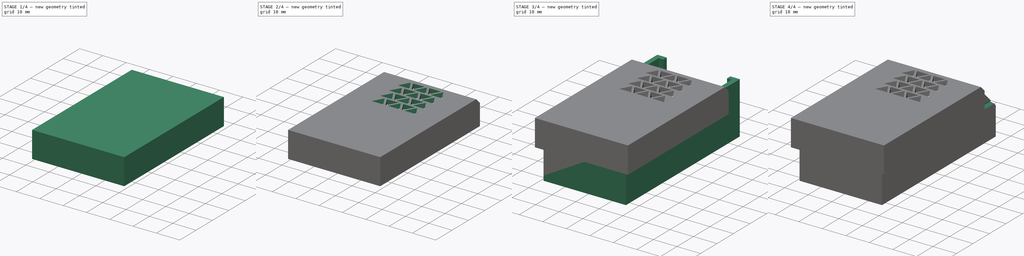
[diagram: build sequence overview — one tinted view per stage of 4, left to right]
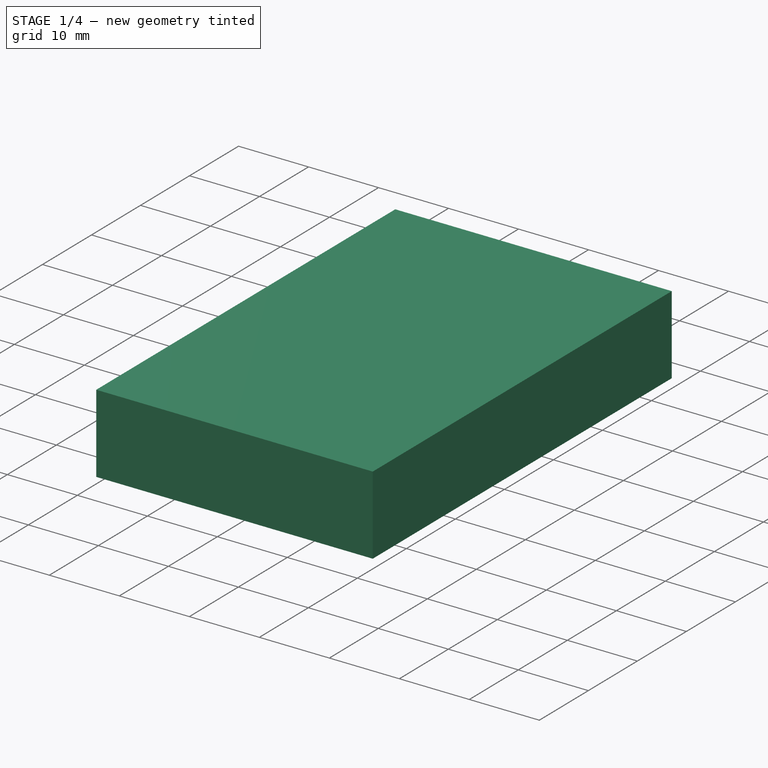
[diagram: stage 1 of 4 — iso view after this stage's code; geometry added in this stage tinted green]
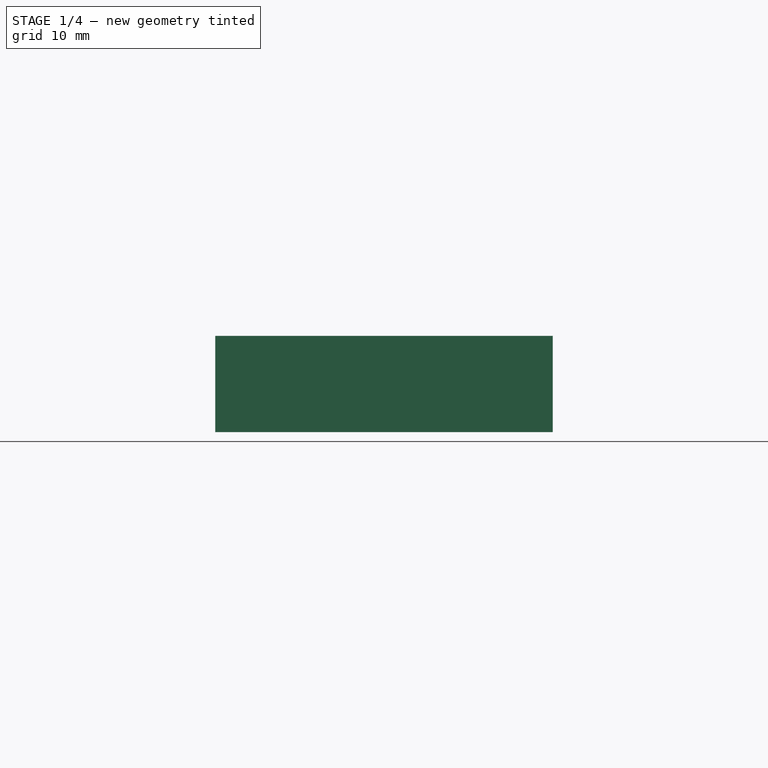
[diagram: stage 1 of 4 — front view after this stage's code; geometry added in this stage tinted green]
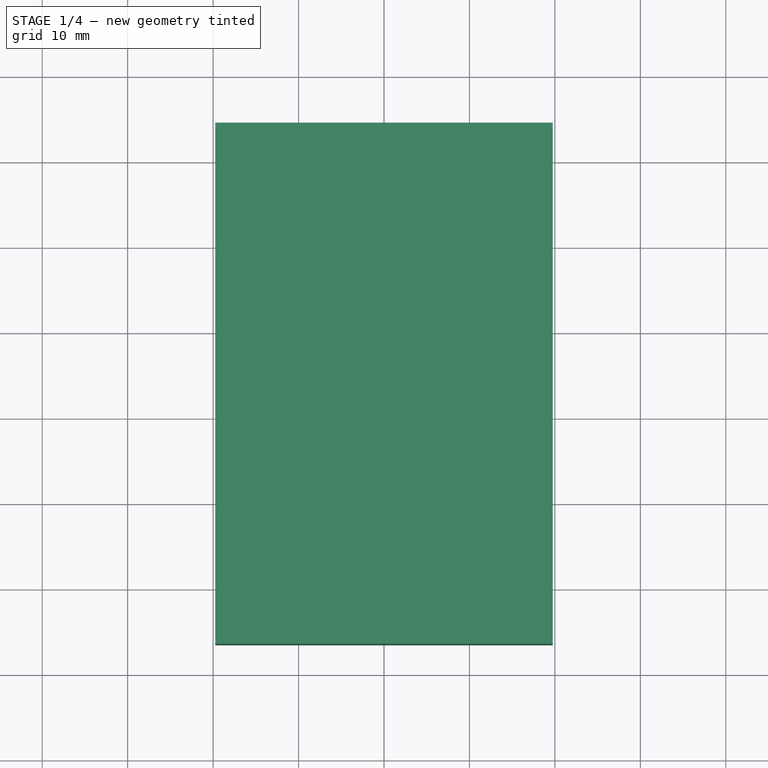
[diagram: stage 1 of 4 — top view after this stage's code; geometry added in this stage tinted green]
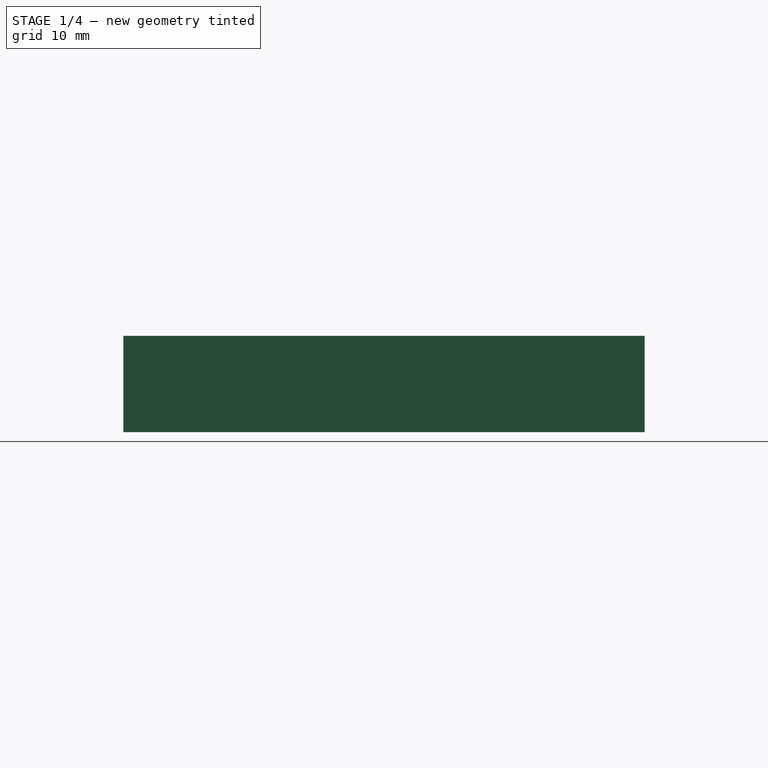
[diagram: stage 1 of 4 — right view after this stage's code; geometry added in this stage tinted green]
FCSTD DOCUMENT  (FreeCAD 0.17R13541 (Git))
Label: ControllerBox
License: All rights reserved
LicenseURL: http://en.wikipedia.org/wiki/All_rights_reserved
objects: Sketcher::SketchObject×9, PartDesign::Pad×5, PartDesign::Pocket×4, PartDesign::Body×2, Spreadsheet::Sheet×1, App::Part×1
note: 29 computed .brp shape members not serialized (recipe doc carries the construction recipe); baked Part::Feature solids carry a one-line shape summary decoded from their .brp

FEATURE [PartDesign::Body] Body
  Group = -> [Sketch,Pad,Sketch001,Pad001,Sketch002,Pad002,Sketch003,Pocket,Sketch004,Pocket001]
  Origin = -> Origin001
  Tip = -> Pocket001
FEATURE [Sketcher::SketchObject] Sketch005
  MapMode = 5
  Placement = pos=(0,0,0) rot=(1,0,0;1.5708rad)
  Support = -> [XZ_Plane002]
  expr: Constraints[45] = 8mm + D.offset
  expr: Constraints[46] = D.dWidth / 2 + D.wall + D.offset
  expr: Constraints[44] = D.wall / 2
  expr: Constraints[42] = D.floor + D.dHeight + D.offset
  expr: Constraints[41] = D.dWidth + D.wall * 2 + D.offset * 2
  expr: Constraints[43] = D.wall / 2
  expr: Constraints[36] = D.wall
  expr: Constraints[37] = D.wall
  expr: Constraints[35] = D.wall
  sketch-geometry (12):
    g0: LineSegment StartX=16.75 StartY=14 StartZ=0 EndX=17.75 EndY=13 EndZ=0
    g1: LineSegment StartX=16.75 StartY=14 StartZ=0 EndX=17.75 EndY=15 EndZ=0
    g2: LineSegment StartX=17.75 StartY=15 StartZ=0 EndX=17.75 EndY=22.25 EndZ=0
    g3: LineSegment StartX=17.75 StartY=22.25 StartZ=0 EndX=-17.75 EndY=22.25 EndZ=0
    g4: LineSegment StartX=-17.75 StartY=22.25 StartZ=0 EndX=-17.75 EndY=15 EndZ=0
    g5: LineSegment StartX=-17.75 StartY=15 StartZ=0 EndX=-16.75 EndY=14 EndZ=0
    g6: LineSegment StartX=-16.75 StartY=14 StartZ=0 EndX=-17.75 EndY=13 EndZ=0
    g7: LineSegment StartX=-17.75 StartY=13 StartZ=0 EndX=-19.75 EndY=13 EndZ=0
    g8: LineSegment StartX=-19.75 StartY=13 StartZ=0 EndX=-19.75 EndY=24.25 EndZ=0
    g9: LineSegment StartX=-19.75 StartY=24.25 StartZ=0 EndX=19.75 EndY=24.25 EndZ=0
    g10: LineSegment StartX=17.75 StartY=13 StartZ=0 EndX=19.75 EndY=13 EndZ=0
    g11: LineSegment StartX=19.75 StartY=13 StartZ=0 EndX=19.75 EndY=24.25 EndZ=0
  constraints (47):
    c: PointOnObject(g1,g0)
    c: PointOnObject(g2,g1)
    c: Vertical(g2)
    c: PointOnObject(g3,g2)
    c: Horizontal(g3)
    c: PointOnObject(g4,g3)
    c: Vertical(g4)
    c: PointOnObject(g5,g4)
    c: PointOnObject(g6,g5)
    c: PointOnObject(g7,g6)
    c: Horizontal(g7)
    c: PointOnObject(g8,g7)
    c: Vertical(g8)
    c: PointOnObject(g9,g8)
    c: Horizontal(g9)
    c: PointOnObject(g10,g0)
    c: PointOnObject(g11,g10)
    c: Vertical(g11)
    c: Coincident(g11,g9)
    c: Coincident(g10,g11)
    c: Coincident(g0,g10)
    c: Coincident(g7,g6)
    c: Coincident(g7,g8)
    c: Coincident(g4,g5)
    c: Coincident(g5,g6)
    c: Coincident(g3,g4)
    c: Coincident(g8,g9)
    c: Coincident(g2,g3)
    c: Coincident(g0,g1)
    c: Coincident(g1,g2)
    c: Horizontal(g10)
    c: Angle(g0,g1) = 1.5708
    c: Angle(g5,g6) = 1.5708
    c: Angle(g10,g0) = 2.35619
    c: Angle(g6,g7) = 2.35619
    c: DistanceX(g8,g3) = 2
    c: DistanceX(g2,g9) = 2
    c: DistanceY(g2,g9) = 2
    c: Vertical(g0,g1)
    c: Vertical(g4,g6)
    c: Horizontal(g5,g0)
    c: Distance(g3) = 35.5
    c: DistanceY(g-1,g3) = 22.25
    c: DistanceX(g4,g5) = 1
    c: DistanceX(g0,g1) = 1
    c: DistanceY(g0,g2) = 8.25
    c: DistanceX(g-1,g2) = 17.75
FEATURE [PartDesign::Pad] Pad003
  Length = 34.5
  Length2 = 24.5
  Placement = pos=(0,0,0) rot=(1,0,0;1.5708rad)
  Profile = -> Sketch005
  Type = 4
  expr: Length2 = D.dLength / 2 + D.wall - 10mm
  expr: Length = D.dLength / 2 + D.wall
FEATURE [Sketcher::SketchObject] Sketch006
  MapMode = 5
  Placement = pos=(0,-34.5,0) rot=(1,0,0;1.5708rad)
  Support = -> [Pad003]
  expr: Constraints[11] = 8mm + D.wall + 1mm + D.offset
  expr: Constraints[10] = D.dWidth / 2 + D.wall * 2 + D.offset
  expr: Constraints[9] = D.dWidth / 2 + D.wall * 2 + D.offset
  expr: Constraints[8] = D.floor + D.dHeight + D.wall + D.offset
  sketch-geometry (4):
    g0: LineSegment StartX=-19.75 StartY=24.25 StartZ=0 EndX=19.75 EndY=24.25 EndZ=0
    g1: LineSegment StartX=19.75 StartY=24.25 StartZ=0 EndX=19.75 EndY=13 EndZ=0
    g2: LineSegment StartX=19.75 StartY=13 StartZ=0 EndX=-19.75 EndY=13 EndZ=0
    g3: LineSegment StartX=-19.75 StartY=13 StartZ=0 EndX=-19.75 EndY=24.25 EndZ=0
  constraints (12):
    c: Coincident(g0,g1)
    c: Coincident(g1,g2)
    c: Coincident(g2,g3)
    c: Coincident(g3,g0)
    c: Horizontal(g0)
    c: Horizontal(g2)
    c: Vertical(g1)
    c: Vertical(g3)
    c: DistanceY(g-1,g0) = 24.25
    c: DistanceX(g0,g-1) = 19.75
    c: DistanceX(g-1,g1) = 19.75
    c: Distance(g1) = 11.25
FEATURE [PartDesign::Pad] Pad004
  BaseFeature = -> Pad003
  Length = 2
  Length2 = 100
  Placement = pos=(0,0,0) rot=(1,0,0;1.5708rad)
  Profile = -> Sketch006
  Type = 0
  expr: Length = D.wall
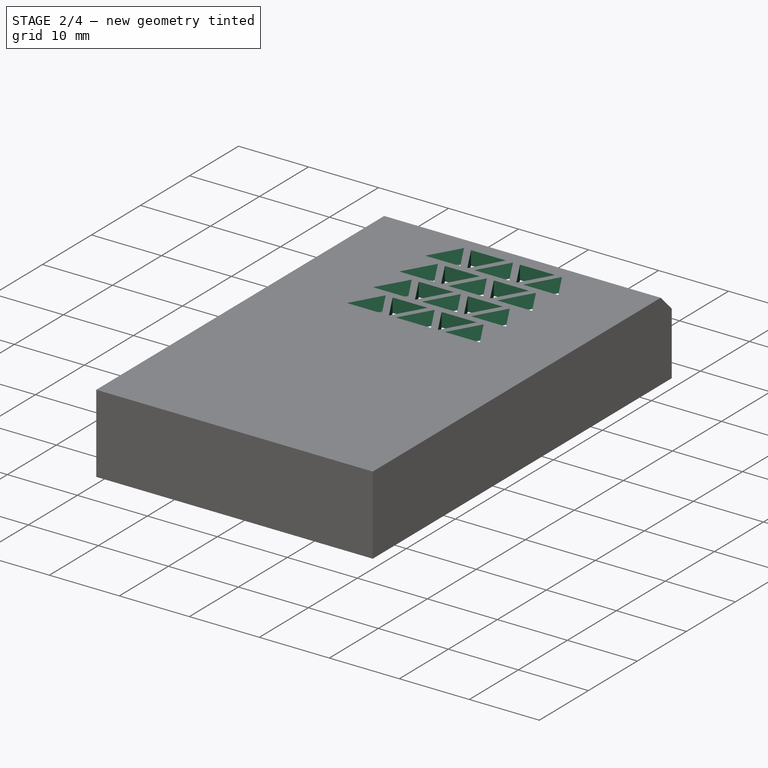
[diagram: stage 2 of 4 — iso view after this stage's code; geometry added in this stage tinted green]
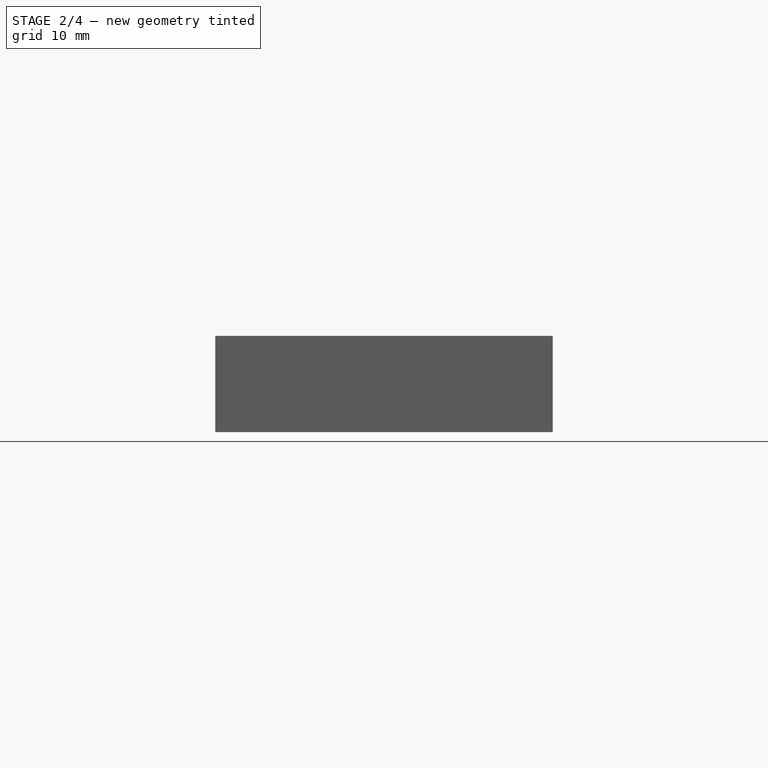
[diagram: stage 2 of 4 — front view after this stage's code; geometry added in this stage tinted green]
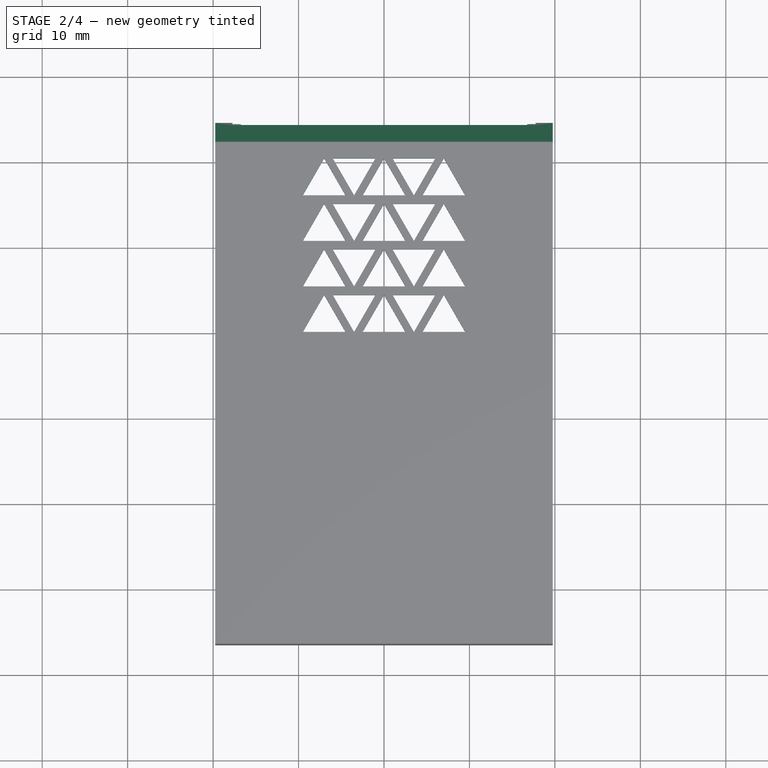
[diagram: stage 2 of 4 — top view after this stage's code; geometry added in this stage tinted green]
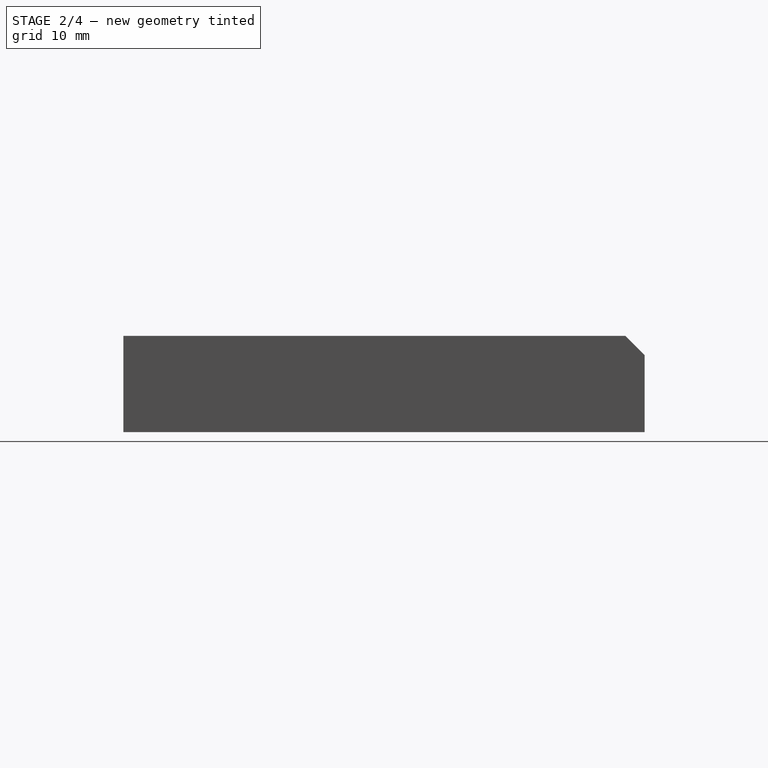
[diagram: stage 2 of 4 — right view after this stage's code; geometry added in this stage tinted green]
FEATURE [Sketcher::SketchObject] Sketch007
  MapMode = 5
  Placement = pos=(-19.75,0,0) rot=(0.707107,0,-0.707107;3.14159rad)
  Support = -> [Pad004]
  expr: Constraints[8] = 10mm + D.wall + D.offset
  expr: Constraints[7] = D.floor + D.dHeight + D.wall + D.offset
  expr: Constraints[6] = D.dLength / 2 + D.wall
  sketch-geometry (3):
    g0: LineSegment StartX=-12 StartY=-34.5 StartZ=0 EndX=-24.25 EndY=-22.25 EndZ=0
    g1: LineSegment StartX=-24.25 StartY=-22.25 StartZ=0 EndX=-24.25 EndY=-34.5 EndZ=0
    g2: LineSegment StartX=-12 StartY=-34.5 StartZ=0 EndX=-24.25 EndY=-34.5 EndZ=0
  constraints (9):
    c: Vertical(g1)
    c: Coincident(g2,g0)
    c: Horizontal(g2)
    c: Coincident(g1,g2)
    c: Angle(g0,g2) = 0.785398
    c: Coincident(g0,g1)
    c: DistanceY(g0,g-1) = 34.5
    c: DistanceX(g0,g-1) = 24.25
    c: Distance(g2) = 12.25
FEATURE [PartDesign::Pocket] Pocket002
  BaseFeature = -> Pad004
  Length = 5
  Length2 = 100
  Placement = pos=(0,0,0) rot=(1,0,0;1.5708rad)
  Profile = -> Sketch007
  Type = 1
FEATURE [Sketcher::SketchObject] Sketch008
  MapMode = 5
  Placement = pos=(0,0,22.25) rot=(1,0,0;3.14159rad)
  Support = -> [Pocket002]
  sketch-geometry (80):
    g0: LineSegment StartX=-9.5 StartY=0 StartZ=0 EndX=-7 EndY=-4.33013 EndZ=0
    g1: LineSegment StartX=-7 StartY=-4.33013 StartZ=0 EndX=-4.5 EndY=0 EndZ=0
    g2: LineSegment StartX=-4.5 StartY=0 StartZ=0 EndX=-9.5 EndY=0 EndZ=0
    g3: Circle [constr] CenterX=-7 CenterY=-1.44338 CenterZ=0 NormalX=0 NormalY=0 NormalZ=1 AngleXU=0 Radius=2.88675
    g4: LineSegment StartX=-2.5 StartY=0 StartZ=0 EndX=0 EndY=-4.33013 EndZ=0
    g5: LineSegment StartX=0 StartY=-4.33013 StartZ=0 EndX=2.5 EndY=0 EndZ=0
    g6: LineSegment StartX=2.5 StartY=0 StartZ=0 EndX=-2.5 EndY=0 EndZ=0
    g7: Circle [constr] CenterX=0 CenterY=-1.44338 CenterZ=0 NormalX=0 NormalY=0 NormalZ=1 AngleXU=0 Radius=2.88675
    g8: LineSegment StartX=9.5 StartY=0 StartZ=0 EndX=4.5 EndY=0 EndZ=0
    g9: LineSegment StartX=4.5 StartY=0 StartZ=0 EndX=7 EndY=-4.33013 EndZ=0
    g10: LineSegment StartX=7 StartY=-4.33013 StartZ=0 EndX=9.5 EndY=0 EndZ=0
    g11: Circle [constr] CenterX=7 CenterY=-1.44338 CenterZ=0 NormalX=0 NormalY=0 NormalZ=1 AngleXU=0 Radius=2.88675
    g12: LineSegment StartX=-3.5 StartY=0 StartZ=0 EndX=-6 EndY=-4.33013 EndZ=0
    g13: LineSegment StartX=-6 StartY=-4.33013 StartZ=0 EndX=-1 EndY=-4.33013 EndZ=0
    g14: LineSegment StartX=-1 StartY=-4.33013 StartZ=0 EndX=-3.5 EndY=0 EndZ=0
    g15: Circle [constr] CenterX=-3.5 CenterY=-2.88675 CenterZ=0 NormalX=0 NormalY=0 NormalZ=1 AngleXU=0 Radius=2.88675
    g16: LineSegment StartX=3.5 StartY=0 StartZ=0 EndX=1 EndY=-4.33013 EndZ=0
    g17: LineSegment StartX=1 StartY=-4.33013 StartZ=0 EndX=6 EndY=-4.33013 EndZ=0
    g18: LineSegment StartX=6 StartY=-4.33013 StartZ=0 EndX=3.5 EndY=0 EndZ=0
    g19: Circle [constr] CenterX=3.5 CenterY=-2.88675 CenterZ=0 NormalX=0 NormalY=0 NormalZ=1 AngleXU=0 Radius=2.88675
    g20: LineSegment StartX=-9.5 StartY=-5.33013 StartZ=0 EndX=-7 EndY=-9.66025 EndZ=0
    g21: LineSegment StartX=-7 StartY=-9.66025 StartZ=0 EndX=-4.5 EndY=-5.33013 EndZ=0
    g22: LineSegment StartX=-4.5 StartY=-5.33013 StartZ=0 EndX=-9.5 EndY=-5.33013 EndZ=0
    g23: Circle [constr] CenterX=-7 CenterY=-6.7735 CenterZ=0 NormalX=0 NormalY=0 NormalZ=1 AngleXU=0 Radius=2.88675
    g24: LineSegment StartX=-2.5 StartY=-5.33013 StartZ=0 EndX=0 EndY=-9.66025 EndZ=0
    g25: LineSegment StartX=0 StartY=-9.66025 StartZ=0 EndX=2.5 EndY=-5.33013 EndZ=0
    g26: LineSegment StartX=2.5 StartY=-5.33013 StartZ=0 EndX=-2.5 EndY=-5.33013 EndZ=0
    g27: Circle [constr] CenterX=0 CenterY=-6.7735 CenterZ=0 NormalX=0 NormalY=0 NormalZ=1 AngleXU=0 Radius=2.88675
    g28: LineSegment StartX=9.5 StartY=-5.33013 StartZ=0 EndX=4.5 EndY=-5.33013 EndZ=0
    g29: LineSegment StartX=4.5 StartY=-5.33013 StartZ=0 EndX=7 EndY=-9.66025 EndZ=0
    g30: LineSegment StartX=7 StartY=-9.66025 StartZ=0 EndX=9.5 EndY=-5.33013 EndZ=0
    g31: Circle [constr] CenterX=7 CenterY=-6.7735 CenterZ=0 NormalX=0 NormalY=0 NormalZ=1 AngleXU=0 Radius=2.88675
    g32: LineSegment StartX=-3.5 StartY=-5.33013 StartZ=0 EndX=-6 EndY=-9.66025 EndZ=0
    g33: LineSegment StartX=-6 StartY=-9.66025 StartZ=0 EndX=-1 EndY=-9.66025 EndZ=0
    g34: LineSegment StartX=-1 StartY=-9.66025 StartZ=0 EndX=-3.5 EndY=-5.33013 EndZ=0
    g35: Circle [constr] CenterX=-3.5 CenterY=-8.21688 CenterZ=0 NormalX=0 NormalY=0 NormalZ=1 AngleXU=0 Radius=2.88675
    g36: LineSegment StartX=3.5 StartY=-5.33013 StartZ=0 EndX=1 EndY=-9.66025 EndZ=0
    g37: LineSegment StartX=1 StartY=-9.66025 StartZ=0 EndX=6 EndY=-9.66025 EndZ=0
    g38: LineSegment StartX=6 StartY=-9.66025 StartZ=0 EndX=3.5 EndY=-5.33013 EndZ=0
    g39: Circle [constr] CenterX=3.5 CenterY=-8.21688 CenterZ=0 NormalX=0 NormalY=0 NormalZ=1 AngleXU=0 Radius=2.88675
    g40: LineSegment StartX=-9.5 StartY=-10.6603 StartZ=0 EndX=-7 EndY=-14.9904 EndZ=0
    g41: LineSegment StartX=-7 StartY=-14.9904 StartZ=0 EndX=-4.5 EndY=-10.6603 EndZ=0
    g42: LineSegment StartX=-4.5 StartY=-10.6603 StartZ=0 EndX=-9.5 EndY=-10.6603 EndZ=0
    g43: Circle [constr] CenterX=-7 CenterY=-12.1036 CenterZ=0 NormalX=0 NormalY=0 NormalZ=1 AngleXU=0 Radius=2.88675
    g44: LineSegment StartX=-2.5 StartY=-10.6603 StartZ=0 EndX=0 EndY=-14.9904 EndZ=0
    g45: LineSegment StartX=0 StartY=-14.9904 StartZ=0 EndX=2.5 EndY=-10.6603 EndZ=0
    g46: LineSegment StartX=2.5 StartY=-10.6603 StartZ=0 EndX=-2.5 EndY=-10.6603 EndZ=0
    g47: Circle [constr] CenterX=0 CenterY=-12.1036 CenterZ=0 NormalX=0 NormalY=0 NormalZ=1 AngleXU=0 Radius=2.88675
    g48: LineSegment StartX=9.5 StartY=-10.6603 StartZ=0 EndX=4.5 EndY=-10.6603 EndZ=0
    g49: LineSegment StartX=4.5 StartY=-10.6603 StartZ=0 EndX=7 EndY=-14.9904 EndZ=0
    g50: LineSegment StartX=7 StartY=-14.9904 StartZ=0 EndX=9.5 EndY=-10.6603 EndZ=0
    g51: Circle [constr] CenterX=7 CenterY=-12.1036 CenterZ=0 NormalX=0 NormalY=0 NormalZ=1 AngleXU=0 Radius=2.88675
    g52: LineSegment StartX=-3.5 StartY=-10.6603 StartZ=0 EndX=-6 EndY=-14.9904 EndZ=0
    g53: LineSegment StartX=-6 StartY=-14.9904 StartZ=0 EndX=-1 EndY=-14.9904 EndZ=0
    g54: LineSegment StartX=-1 StartY=-14.9904 StartZ=0 EndX=-3.5 EndY=-10.6603 EndZ=0
    g55: Circle [constr] CenterX=-3.5 CenterY=-13.547 CenterZ=0 NormalX=0 NormalY=0 NormalZ=1 AngleXU=0 Radius=2.88675
    g56: LineSegment StartX=3.5 StartY=-10.6603 StartZ=0 EndX=1 EndY=-14.9904 EndZ=0
    g57: LineSegment StartX=1 StartY=-14.9904 StartZ=0 EndX=6 EndY=-14.9904 EndZ=0
    g58: LineSegment StartX=6 StartY=-14.9904 StartZ=0 EndX=3.5 EndY=-10.6603 EndZ=0
    g59: Circle [constr] CenterX=3.5 CenterY=-13.547 CenterZ=0 NormalX=0 NormalY=0 NormalZ=1 AngleXU=0 Radius=2.88675
    g60: LineSegment StartX=-9.5 StartY=-15.9904 StartZ=0 EndX=-7 EndY=-20.3205 EndZ=0
    g61: LineSegment StartX=-7 StartY=-20.3205 StartZ=0 EndX=-4.5 EndY=-15.9904 EndZ=0
    g62: LineSegment StartX=-4.5 StartY=-15.9904 StartZ=0 EndX=-9.5 EndY=-15.9904 EndZ=0
    g63: Circle [constr] CenterX=-7 CenterY=-17.4338 CenterZ=0 NormalX=0 NormalY=0 NormalZ=1 AngleXU=0 Radius=2.88675
    g64: LineSegment StartX=-2.5 StartY=-15.9904 StartZ=0 EndX=0 EndY=-20.3205 EndZ=0
    g65: LineSegment StartX=0 StartY=-20.3205 StartZ=0 EndX=2.5 EndY=-15.9904 EndZ=0
    g66: LineSegment StartX=2.5 StartY=-15.9904 StartZ=0 EndX=-2.5 EndY=-15.9904 EndZ=0
    g67: Circle [constr] CenterX=0 CenterY=-17.4338 CenterZ=0 NormalX=0 NormalY=0 NormalZ=1 AngleXU=0 Radius=2.88675
    g68: LineSegment StartX=9.5 StartY=-15.9904 StartZ=0 EndX=4.5 EndY=-15.9904 EndZ=0
    g69: LineSegment StartX=4.5 StartY=-15.9904 StartZ=0 EndX=7 EndY=-20.3205 EndZ=0
    g70: LineSegment StartX=7 StartY=-20.3205 StartZ=0 EndX=9.5 EndY=-15.9904 EndZ=0
    g71: Circle [constr] CenterX=7 CenterY=-17.4338 CenterZ=0 NormalX=0 NormalY=0 NormalZ=1 AngleXU=0 Radius=2.88675
    g72: LineSegment StartX=-3.5 StartY=-15.9904 StartZ=0 EndX=-6 EndY=-20.3205 EndZ=0
    g73: LineSegment StartX=-6 StartY=-20.3205 StartZ=0 EndX=-1 EndY=-20.3205 EndZ=0
    g74: LineSegment StartX=-1 StartY=-20.3205 StartZ=0 EndX=-3.5 EndY=-15.9904 EndZ=0
    g75: Circle [constr] CenterX=-3.5 CenterY=-18.8771 CenterZ=0 NormalX=0 NormalY=0 NormalZ=1 AngleXU=0 Radius=2.88675
    g76: LineSegment StartX=3.5 StartY=-15.9904 StartZ=0 EndX=1 EndY=-20.3205 EndZ=0
    g77: LineSegment StartX=1 StartY=-20.3205 StartZ=0 EndX=6 EndY=-20.3205 EndZ=0
    g78: LineSegment StartX=6 StartY=-20.3205 StartZ=0 EndX=3.5 EndY=-15.9904 EndZ=0
    g79: Circle [constr] CenterX=3.5 CenterY=-18.8771 CenterZ=0 NormalX=0 NormalY=0 NormalZ=1 AngleXU=0 Radius=2.88675
  constraints (240):
    c: Coincident(g0,g1)
    c: Coincident(g1,g2)
    c: Coincident(g2,g0)
    c: Equal(g0,g1)
    c: Equal(g0,g2)
    c: PointOnObject(g0,g3)
    c: PointOnObject(g1,g3)
    c: PointOnObject(g2,g3)
    c: Horizontal(g2)
    c: Distance(g2) = 5
    c: Horizontal(g0,g-1)
    c: Coincident(g4,g5)
    c: Coincident(g5,g6)
    c: Coincident(g6,g4)
    c: Equal(g4,g5)
    c: Equal(g4,g6)
    c: PointOnObject(g4,g7)
    c: PointOnObject(g5,g7)
    c: PointOnObject(g6,g7)
    c: Horizontal(g6)
    c: Distance(g6) = 5
    c: Horizontal(g4,g-1)
    c: Vertical(g4,g-1)
    c: Distance(g1,g4) = 2
    c: Coincident(g8,g9)
    c: Coincident(g9,g10)
    c: Coincident(g10,g8)
    c: Equal(g8,g9)
    c: Equal(g8,g10)
    c: PointOnObject(g8,g11)
    c: PointOnObject(g9,g11)
    c: PointOnObject(g10,g11)
    c: Horizontal(g8)
    c: Horizontal(g8,g-1)
    c: Distance(g8) = 5
    c: Distance(g5,g8) = 2
    c: Coincident(g12,g13)
    c: Coincident(g13,g14)
    c: Coincident(g14,g12)
    c: Equal(g12,g13)
    c: Equal(g12,g14)
    c: PointOnObject(g12,g15)
    c: PointOnObject(g13,g15)
    c: PointOnObject(g14,g15)
    c: Horizontal(g13)
    c: Horizontal(g-1,g12)
    c: Distance(g13) = 5
    c: Distance(g12,g4) = 1
    c: Coincident(g16,g17)
    c: Coincident(g17,g18)
    c: Coincident(g18,g16)
    c: Equal(g16,g17)
    c: Equal(g16,g18)
    c: PointOnObject(g16,g19)
    c: PointOnObject(g17,g19)
    c: PointOnObject(g18,g19)
    c: Horizontal(g17)
    c: Horizontal(g16,g8)
    c: Distance(g16,g5) = 1
    c: Distance(g17) = 5
    c: Coincident(g20,g21)
    c: Coincident(g21,g22)
    c: Coincident(g22,g20)
    c: Equal(g20,g21)
    c: Equal(g20,g22)
    c: PointOnObject(g20,g23)
    c: PointOnObject(g21,g23)
    c: PointOnObject(g22,g23)
    c: Horizontal(g22)
    c: Distance(g22) = 5
    c: Coincident(g24,g25)
    c: Coincident(g25,g26)
    c: Coincident(g26,g24)
    c: Equal(g24,g25)
    c: Equal(g24,g26)
    c: PointOnObject(g24,g27)
    c: PointOnObject(g25,g27)
    c: PointOnObject(g26,g27)
    c: Horizontal(g26)
    c: Distance(g26) = 5
    c: Distance(g21,g24) = 2
    c: Coincident(g28,g29)
    c: Coincident(g29,g30)
    c: Coincident(g30,g28)
    c: Equal(g28,g29)
    c: Equal(g28,g30)
    c: PointOnObject(g28,g31)
    c: PointOnObject(g29,g31)
    c: PointOnObject(g30,g31)
    c: Horizontal(g28)
    c: Distance(g28) = 5
    c: Distance(g25,g28) = 2
    c: Coincident(g32,g33)
    c: Coincident(g33,g34)
    c: Coincident(g34,g32)
    c: Equal(g32,g33)
    c: Equal(g32,g34)
    c: PointOnObject(g32,g35)
    c: PointOnObject(g33,g35)
    c: PointOnObject(g34,g35)
    c: Horizontal(g33)
    c: Distance(g33) = 5
    c: Distance(g32,g24) = 1
    c: Coincident(g36,g37)
    c: Coincident(g37,g38)
    c: Coincident(g38,g36)
    c: Equal(g36,g37)
    c: Equal(g36,g38)
    c: PointOnObject(g36,g39)
    c: PointOnObject(g37,g39)
    c: PointOnObject(g38,g39)
    c: Horizontal(g37)
    c: Horizontal(g36,g28)
    c: Distance(g36,g25) = 1
    c: Distance(g37) = 5
    c: Coincident(g40,g41)
    c: Coincident(g41,g42)
    c: Coincident(g42,g40)
    c: Equal(g40,g41)
    c: Equal(g40,g42)
    c: PointOnObject(g40,g43)
    c: PointOnObject(g41,g43)
    c: PointOnObject(g42,g43)
    c: Horizontal(g42)
    c: Distance(g42) = 5
    c: Coincident(g44,g45)
    c: Coincident(g45,g46)
    c: Coincident(g46,g44)
    c: Equal(g44,g45)
    c: Equal(g44,g46)
    c: PointOnObject(g44,g47)
    c: PointOnObject(g45,g47)
    c: PointOnObject(g46,g47)
    c: Horizontal(g46)
    c: Distance(g46) = 5
    c: Distance(g41,g44) = 2
    c: Coincident(g48,g49)
    c: Coincident(g49,g50)
    c: Coincident(g50,g48)
    c: Equal(g48,g49)
    c: Equal(g48,g50)
    c: PointOnObject(g48,g51)
    c: PointOnObject(g49,g51)
    c: PointOnObject(g50,g51)
    c: Horizontal(g48)
    c: Distance(g48) = 5
    c: Distance(g45,g48) = 2
    c: Coincident(g52,g53)
    c: Coincident(g53,g54)
    c: Coincident(g54,g52)
    c: Equal(g52,g53)
    c: Equal(g52,g54)
    c: PointOnObject(g52,g55)
    c: PointOnObject(g53,g55)
    c: PointOnObject(g54,g55)
    c: Horizontal(g53)
    c: Distance(g53) = 5
    c: Distance(g52,g44) = 1
    c: Coincident(g56,g57)
    c: Coincident(g57,g58)
    c: Coincident(g58,g56)
    c: Equal(g56,g57)
    c: Equal(g56,g58)
    c: PointOnObject(g56,g59)
    c: PointOnObject(g57,g59)
    c: PointOnObject(g58,g59)
    c: Horizontal(g57)
    c: Horizontal(g56,g48)
    c: Distance(g56,g45) = 1
    c: Distance(g57) = 5
    c: Coincident(g60,g61)
    c: Coincident(g61,g62)
    c: Coincident(g62,g60)
    c: Equal(g60,g61)
    c: Equal(g60,g62)
    c: PointOnObject(g60,g63)
    c: PointOnObject(g61,g63)
    c: PointOnObject(g62,g63)
    c: Horizontal(g62)
    c: Distance(g62) = 5
    c: Coincident(g64,g65)
    c: Coincident(g65,g66)
    c: Coincident(g66,g64)
    c: Equal(g64,g65)
    c: Equal(g64,g66)
    c: PointOnObject(g64,g67)
    c: PointOnObject(g65,g67)
    c: PointOnObject(g66,g67)
    c: Horizontal(g66)
    c: Distance(g66) = 5
    c: Distance(g61,g64) = 2
    c: Coincident(g68,g69)
    c: Coincident(g69,g70)
    c: Coincident(g70,g68)
    c: Equal(g68,g69)
    c: Equal(g68,g70)
    c: PointOnObject(g68,g71)
    c: PointOnObject(g69,g71)
    c: PointOnObject(g70,g71)
    c: Horizontal(g68)
    c: Distance(g68) = 5
    c: Distance(g65,g68) = 2
    c: Coincident(g72,g73)
    c: Coincident(g73,g74)
    c: Coincident(g74,g72)
    c: Equal(g72,g73)
    c: Equal(g72,g74)
    c: PointOnObject(g72,g75)
    c: PointOnObject(g73,g75)
    c: PointOnObject(g74,g75)
    c: Horizontal(g73)
    c: Distance(g73) = 5
    c: Distance(g72,g64) = 1
    c: Coincident(g76,g77)
    c: Coincident(g77,g78)
    c: Coincident(g78,g76)
    c: Equal(g76,g77)
    c: Equal(g76,g78)
    c: PointOnObject(g76,g79)
    c: PointOnObject(g77,g79)
    c: PointOnObject(g78,g79)
    c: Horizontal(g77)
    c: Horizontal(g76,g68)
    c: Distance(g76,g65) = 1
    c: Distance(g77) = 5
    c: Horizontal(g21,g32)
    c: Horizontal(g32,g24)
    c: Horizontal(g25,g36)
    c: DistanceY(g24,g4) = 1
    c: Vertical(g24,g7)
    c: Horizontal(g41,g52)
    c: Horizontal(g52,g44)
    c: Horizontal(g45,g56)
    c: Vertical(g44,g7)
    c: DistanceY(g44,g24) = 1
    c: Horizontal(g65,g76)
    c: Horizontal(g64,g72)
    c: Horizontal(g61,g72)
    c: Vertical(g64,g27)
    c: DistanceY(g64,g44) = 1
FEATURE [PartDesign::Pocket] Pocket003
  BaseFeature = -> Pocket002
  Length = 5
  Length2 = 100
  Placement = pos=(0,0,0) rot=(1,0,0;1.5708rad)
  Profile = -> Sketch008
  Type = 1
FEATURE [PartDesign::Body] Body001  label="Lid"
  Group = -> [Sketch005,Pad003,Sketch006,Pad004,Sketch007,Pocket002,Sketch008,Pocket003]
  Origin = -> Origin002
  Tip = -> Pocket003
FEATURE [App::Part] Part
  Group = -> [Body,Body001]
  License = CC BY 3.0
  LicenseURL = http://creativecommons.org/licenses/by/3.0/
  Origin = -> Origin
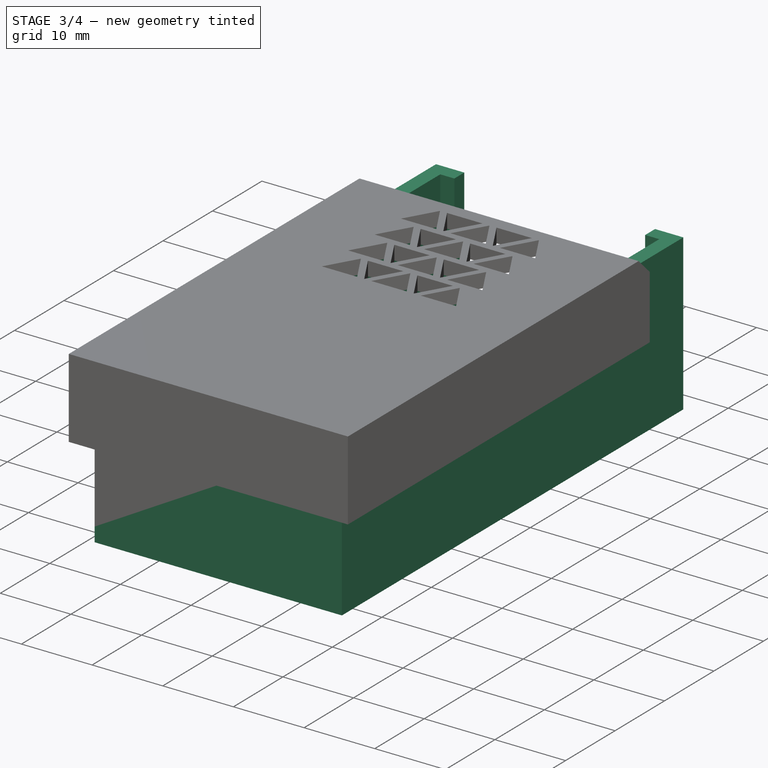
[diagram: stage 3 of 4 — iso view after this stage's code; geometry added in this stage tinted green]
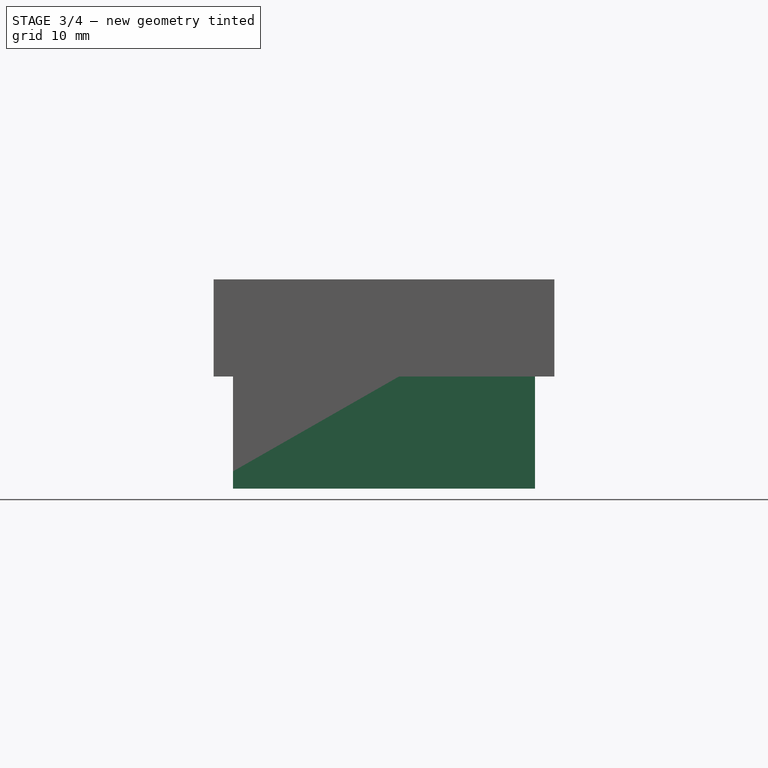
[diagram: stage 3 of 4 — front view after this stage's code; geometry added in this stage tinted green]
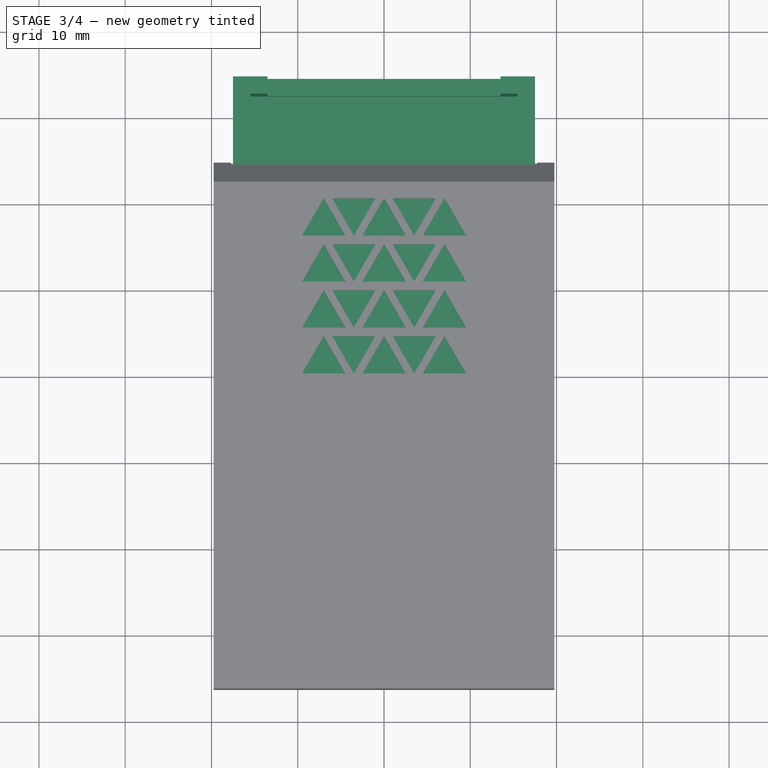
[diagram: stage 3 of 4 — top view after this stage's code; geometry added in this stage tinted green]
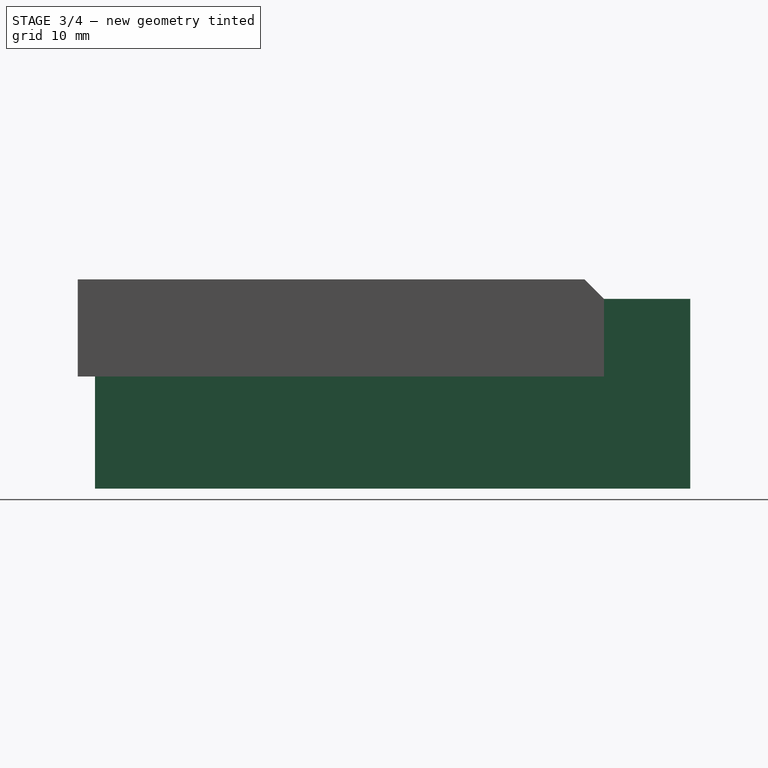
[diagram: stage 3 of 4 — right view after this stage's code; geometry added in this stage tinted green]
FEATURE [Spreadsheet::Sheet] Spreadsheet  label="D"
  cells = B2=Wall; C2(wall)==2mm; B3=Floor; C3(floor)==2mm; B5=Device width; C5(dWidth)==31mm; B6=Device Length; C6(dLength)==65mm; B7=Device height; C7(dHeight)==20mm; B8=Offset; C8(offset)==0.25mm
FEATURE [Sketcher::SketchObject] Sketch
  MapMode = 5
  Support = -> [XY_Plane001]
  expr: Constraints[26] = D.wall
  expr: Constraints[25] = D.wall
  expr: Constraints[24] = D.wall
  expr: Constraints[27] = D.wall
  expr: Constraints[9] = D.dLength
  expr: Constraints[8] = D.dWidth
  sketch-geometry (10):
    g0: LineSegment [constr] StartX=-15.5 StartY=32.5 StartZ=0 EndX=15.5 EndY=32.5 EndZ=0
    g1: LineSegment [constr] StartX=15.5 StartY=32.5 StartZ=0 EndX=15.5 EndY=-32.5 EndZ=0
    g2: LineSegment [constr] StartX=15.5 StartY=-32.5 StartZ=0 EndX=-15.5 EndY=-32.5 EndZ=0
    g3: LineSegment [constr] StartX=-15.5 StartY=-32.5 StartZ=0 EndX=-15.5 EndY=32.5 EndZ=0
    g4: LineSegment [constr] StartX=-15.5 StartY=32.5 StartZ=0 EndX=15.5 EndY=-32.5 EndZ=0
    g5: LineSegment [constr] StartX=15.5 StartY=32.5 StartZ=0 EndX=-15.5 EndY=-32.5 EndZ=0
    g6: LineSegment StartX=-17.5 StartY=34.5 StartZ=0 EndX=17.5 EndY=34.5 EndZ=0
    g7: LineSegment StartX=17.5 StartY=34.5 StartZ=0 EndX=17.5 EndY=-34.5 EndZ=0
    g8: LineSegment StartX=17.5 StartY=-34.5 StartZ=0 EndX=-17.5 EndY=-34.5 EndZ=0
    g9: LineSegment StartX=-17.5 StartY=-34.5 StartZ=0 EndX=-17.5 EndY=34.5 EndZ=0
  constraints (28):
    c: Coincident(g0,g1)
    c: Coincident(g1,g2)
    c: Coincident(g2,g3)
    c: Coincident(g3,g0)
    c: Horizontal(g0)
    c: Horizontal(g2)
    c: Vertical(g1)
    c: Vertical(g3)
    c: Distance(g0) = 31
    c: Distance(g1) = 65
    c: Coincident(g4,g0)
    c: Coincident(g4,g1)
    c: Coincident(g5,g0)
    c: Coincident(g5,g2)
    c: PointOnObject(g-1,g4)
    c: PointOnObject(g-1,g5)
    c: Coincident(g6,g7)
    c: Coincident(g7,g8)
    c: Coincident(g8,g9)
    c: Coincident(g9,g6)
    c: Horizontal(g6)
    c: Horizontal(g8)
    c: Vertical(g7)
    c: Vertical(g9)
    c: DistanceX(g6,g0) = 2
    c: DistanceY(g0,g6) = 2
    c: DistanceX(g1,g7) = 2
    c: DistanceY(g7,g1) = 2
FEATURE [PartDesign::Pad] Pad
  Length = 2
  Length2 = 100
  Profile = -> Sketch
  Type = 0
  expr: Length = D.floor
FEATURE [Sketcher::SketchObject] Sketch001
  MapMode = 5
  Placement = pos=(0,0,2) rot=(0,0,1;0rad)
  Support = -> [Pad]
  expr: Constraints[46] = D.wall
  expr: Constraints[42] = D.wall
  expr: Constraints[13] = D.dWidth
  expr: Constraints[14] = D.dLength
  expr: Constraints[41] = D.wall
  expr: Constraints[47] = D.wall
  expr: Constraints[43] = D.wall
  expr: Constraints[45] = D.wall
  expr: Constraints[44] = D.wall
  sketch-geometry (18):
    g0: LineSegment [constr] StartX=-15.5 StartY=32.5 StartZ=0 EndX=15.5 EndY=32.5 EndZ=0
    g1: LineSegment [constr] StartX=15.5 StartY=32.5 StartZ=0 EndX=15.5 EndY=-32.5 EndZ=0
    g2: LineSegment [constr] StartX=15.5 StartY=-32.5 StartZ=0 EndX=-15.5 EndY=-32.5 EndZ=0
    g3: LineSegment [constr] StartX=-15.5 StartY=-32.5 StartZ=0 EndX=-15.5 EndY=32.5 EndZ=0
    g4: LineSegment [constr] StartX=-15.5 StartY=32.5 StartZ=0 EndX=15.5 EndY=-32.5 EndZ=0
    g5: LineSegment [constr] StartX=15.5 StartY=32.5 StartZ=0 EndX=-15.5 EndY=-32.5 EndZ=0
    g6: LineSegment StartX=-15.5 StartY=-32.5 StartZ=0 EndX=15.5 EndY=-32.5 EndZ=0
    g7: LineSegment StartX=15.5 StartY=-32.5 StartZ=0 EndX=15.5 EndY=32.5 EndZ=0
    g8: LineSegment StartX=-15.5 StartY=32.5 StartZ=0 EndX=-15.5 EndY=-32.5 EndZ=0
    g9: LineSegment StartX=-15.5 StartY=32.5 StartZ=0 EndX=-13.5 EndY=32.5 EndZ=0
    g10: LineSegment StartX=15.5 StartY=32.5 StartZ=0 EndX=13.5 EndY=32.5 EndZ=0
    g11: LineSegment StartX=-13.5 StartY=32.5 StartZ=0 EndX=-13.5 EndY=34.5 EndZ=0
    g12: LineSegment StartX=-13.5 StartY=34.5 StartZ=0 EndX=-17.5 EndY=34.5 EndZ=0
    g13: LineSegment StartX=-17.5 StartY=34.5 StartZ=0 EndX=-17.5 EndY=-34.5 EndZ=0
    g14: LineSegment StartX=-17.5 StartY=-34.5 StartZ=0 EndX=17.5 EndY=-34.5 EndZ=0
    g15: LineSegment StartX=17.5 StartY=-34.5 StartZ=0 EndX=17.5 EndY=34.5 EndZ=0
    g16: LineSegment StartX=17.5 StartY=34.5 StartZ=0 EndX=13.5 EndY=34.5 EndZ=0
    g17: LineSegment StartX=13.5 StartY=34.5 StartZ=0 EndX=13.5 EndY=32.5 EndZ=0
  constraints (48):
    c: Coincident(g0,g1)
    c: Coincident(g1,g2)
    c: Coincident(g2,g3)
    c: Coincident(g3,g0)
    c: Horizontal(g2)
    c: Vertical(g1)
    c: Vertical(g3)
    c: Coincident(g4,g0)
    c: Coincident(g4,g1)
    c: Coincident(g5,g0)
    c: Coincident(g5,g2)
    c: PointOnObject(g-1,g5)
    c: PointOnObject(g-1,g4)
    c: Distance(g0) = 31
    c: Distance(g1) = 65
    c: Coincident(g6,g2)
    c: Coincident(g6,g1)
    c: Coincident(g7,g1)
    c: Coincident(g7,g0)
    c: Coincident(g8,g0)
    c: Coincident(g8,g2)
    c: Coincident(g9,g0)
    c: PointOnObject(g9,g0)
    c: Horizontal(g9)
    c: Coincident(g10,g0)
    c: PointOnObject(g10,g0)
    c: Coincident(g11,g9)
    c: Vertical(g11)
    c: Coincident(g12,g11)
    c: Horizontal(g12)
    c: Coincident(g13,g12)
    c: Vertical(g13)
    c: Coincident(g14,g13)
    c: Horizontal(g14)
    c: Coincident(g15,g14)
    c: Vertical(g15)
    c: Coincident(g16,g15)
    c: Horizontal(g16)
    c: Coincident(g17,g16)
    c: Coincident(g17,g10)
    c: Vertical(g17)
    c: DistanceX(g12,g0) = 2
    c: DistanceY(g14,g1) = 2
    c: DistanceY(g0,g12) = 2
    c: DistanceX(g0,g15) = 2
    c: DistanceY(g0,g15) = 2
    c: DistanceX(g0,g9) = 2
    c: DistanceX(g10,g0) = 2
FEATURE [PartDesign::Pad] Pad001
  BaseFeature = -> Pad
  Length = 20
  Length2 = 100
  Profile = -> Sketch001
  Type = 0
  expr: Length = D.dHeight
FEATURE [Sketcher::SketchObject] Sketch002
  MapMode = 5
  Placement = pos=(0,0,2) rot=(0,0,1;0rad)
  Support = -> [Pad001]
  expr: Constraints[11] = D.dWidth / 2 - D.wall
  expr: Constraints[9] = D.wall
  expr: Constraints[8] = D.dLength / 2
  sketch-geometry (4):
    g0: LineSegment StartX=-13.5 StartY=32.5 StartZ=0 EndX=13.5 EndY=32.5 EndZ=0
    g1: LineSegment StartX=13.5 StartY=32.5 StartZ=0 EndX=13.5 EndY=34.5 EndZ=0
    g2: LineSegment StartX=13.5 StartY=34.5 StartZ=0 EndX=-13.5 EndY=34.5 EndZ=0
    g3: LineSegment StartX=-13.5 StartY=34.5 StartZ=0 EndX=-13.5 EndY=32.5 EndZ=0
  constraints (12):
    c: Coincident(g0,g1)
    c: Coincident(g1,g2)
    c: Coincident(g2,g3)
    c: Coincident(g3,g0)
    c: Horizontal(g0)
    c: Horizontal(g2)
    c: Vertical(g1)
    c: Vertical(g3)
    c: Distance(g-1,g0) = 32.5
    c: DistanceY(g1,g1) = 2
    c: DistanceX(g-1,g0) = 13.5
    c: DistanceX(g0,g-1) = 13.5
FEATURE [PartDesign::Pad] Pad002
  BaseFeature = -> Pad001
  Length = 3
  Length2 = 100
  Profile = -> Sketch002
  Type = 0
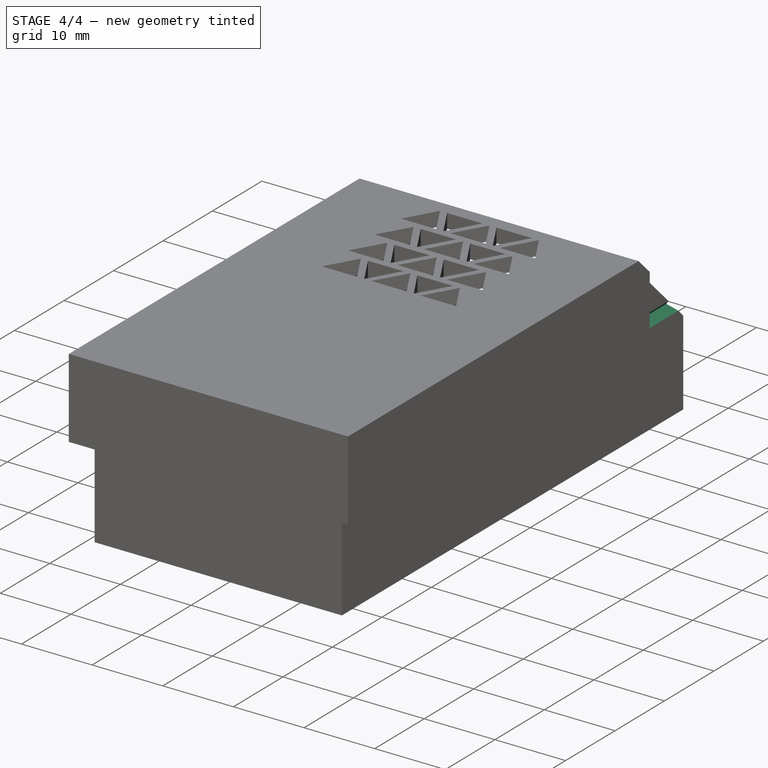
[diagram: stage 4 of 4 — iso view after this stage's code; geometry added in this stage tinted green]
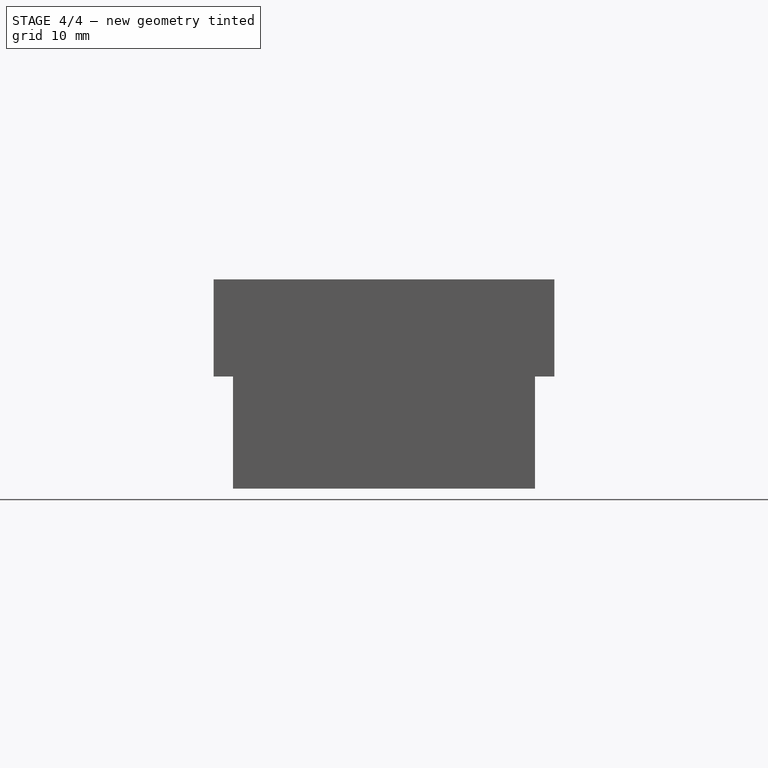
[diagram: stage 4 of 4 — front view after this stage's code; geometry added in this stage tinted green]
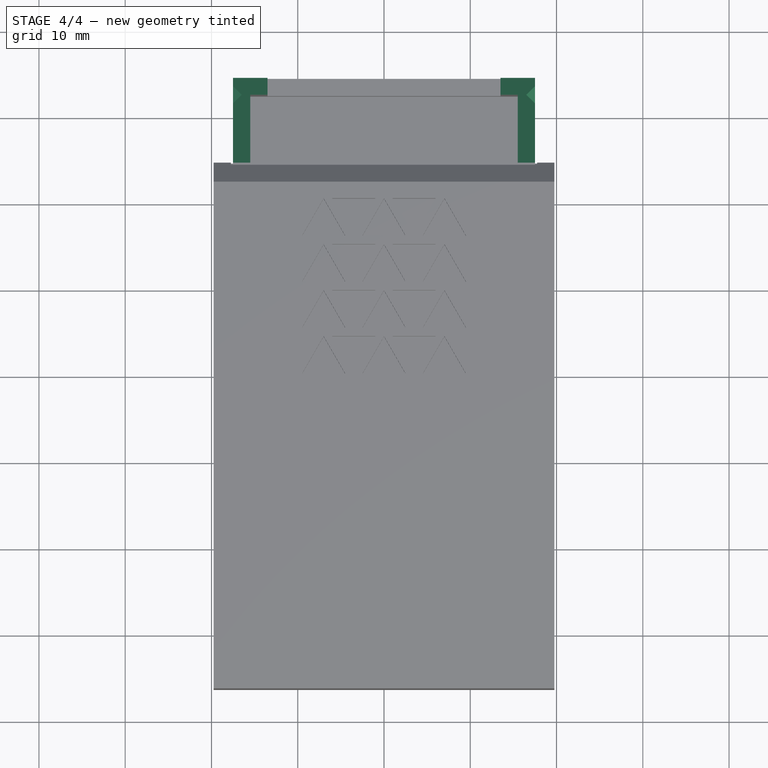
[diagram: stage 4 of 4 — top view after this stage's code; geometry added in this stage tinted green]
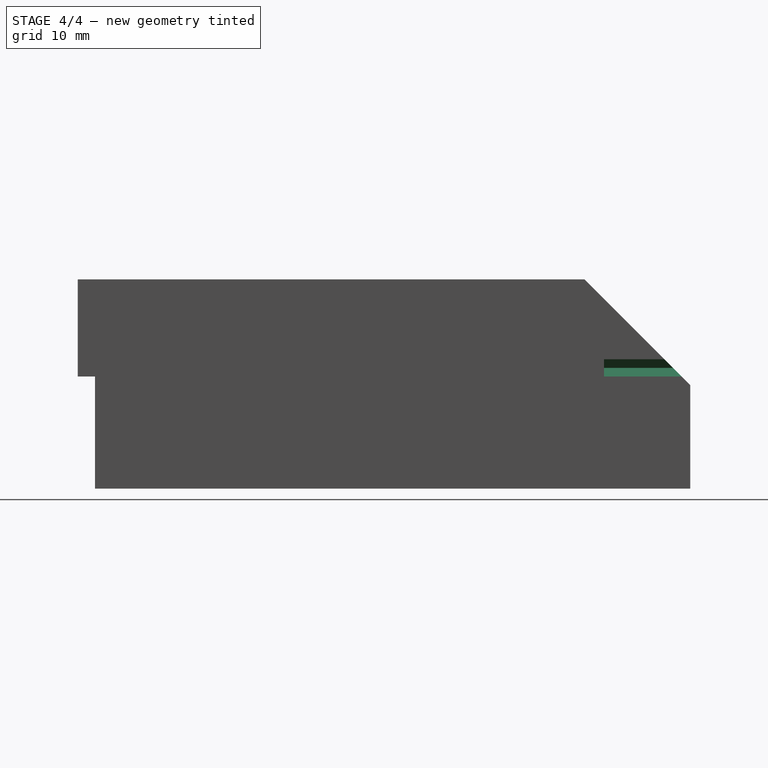
[diagram: stage 4 of 4 — right view after this stage's code; geometry added in this stage tinted green]
FEATURE [Sketcher::SketchObject] Sketch003
  MapMode = 5
  Placement = pos=(-17.5,0,0) rot=(0.57735,-0.57735,-0.57735;2.0944rad)
  Support = -> [Pad002]
  expr: Constraints[7] = (180 - 90) / 2
  expr: Constraints[6] = D.floor + D.dHeight
  expr: Constraints[5] = D.dLength / 2 + D.wall
  sketch-geometry (3):
    g0: LineSegment StartX=-34.5 StartY=22 StartZ=0 EndX=-34.5 EndY=12 EndZ=0
    g1: LineSegment StartX=-34.5 StartY=12 StartZ=0 EndX=-24.5 EndY=22 EndZ=0
    g2: LineSegment StartX=-24.5 StartY=22 StartZ=0 EndX=-34.5 EndY=22 EndZ=0
  constraints (9):
    c: Vertical(g0)
    c: Coincident(g1,g0)
    c: Coincident(g2,g1)
    c: Coincident(g2,g0)
    c: Horizontal(g2)
    c: DistanceX(g0,g-1) = 34.5
    c: DistanceY(g-1,g0) = 22
    c: Angle(g1,g0) = 0.785398
    c: Distance(g2) = 10
FEATURE [PartDesign::Pocket] Pocket
  BaseFeature = -> Pad002
  Length = 5
  Length2 = 100
  Profile = -> Sketch003
  Type = 1
FEATURE [Sketcher::SketchObject] Sketch004
  MapMode = 5
  Placement = pos=(0,-34.5,0) rot=(1,0,0;1.5708rad)
  Support = -> [Pocket]
  expr: Constraints[12] = D.dWidth + D.wall * 2
  expr: Constraints[9] = D.floor + D.dHeight
  expr: Constraints[6] = D.wall / 2
  expr: Constraints[5] = D.dWidth / 2 + D.wall
  sketch-geometry (7):
    g0: LineSegment StartX=-17.5 StartY=15 StartZ=0 EndX=-16.5 EndY=14 EndZ=0
    g1: LineSegment StartX=-16.5 StartY=14 StartZ=0 EndX=-17.5 EndY=13 EndZ=0
    g2: LineSegment StartX=-17.5 StartY=15 StartZ=0 EndX=-17.5 EndY=13 EndZ=0
    g3: LineSegment [constr] StartX=-17.5 StartY=22 StartZ=0 EndX=17.5 EndY=22 EndZ=0
    g4: LineSegment StartX=17.5 StartY=15 StartZ=0 EndX=16.5 EndY=14 EndZ=0
    g5: LineSegment StartX=16.5 StartY=14 StartZ=0 EndX=17.5 EndY=13 EndZ=0
    g6: LineSegment StartX=17.5 StartY=15 StartZ=0 EndX=17.5 EndY=13 EndZ=0
  constraints (22):
    c: Coincident(g1,g0)
    c: Angle(g0,g1) = 1.5708
    c: Coincident(g2,g0)
    c: Coincident(g2,g1)
    c: Vertical(g2)
    c: DistanceX(g1,g-1) = 17.5
    c: DistanceX(g1,g0) = 1
    c: Angle(g2,g0) = 0.785398
    c: Horizontal(g3)
    c: DistanceY(g-1,g3) = 22
    c: DistanceY(g0,g3) = 8
    c: Vertical(g0,g3)
    c: Distance(g3) = 35
    c: Coincident(g5,g4)
    c: Angle(g4,g5) = -1.5708
    c: Coincident(g6,g4)
    c: Coincident(g6,g5)
    c: Vertical(g6)
    c: Angle(g6,g4) = -0.785398
    c: Horizontal(g4,g0)
    c: Horizontal(g5,g1)
    c: Vertical(g4,g3)
FEATURE [PartDesign::Pocket] Pocket001
  BaseFeature = -> Pocket
  Length = 5
  Length2 = 100
  Profile = -> Sketch004
  Type = 1
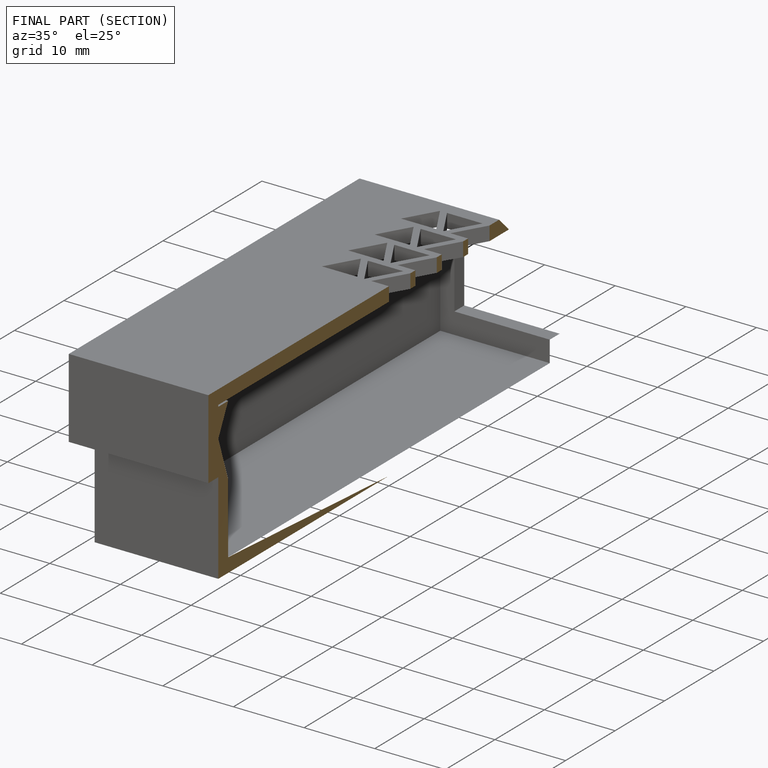
[diagram: finished part — half-section view (interior)]
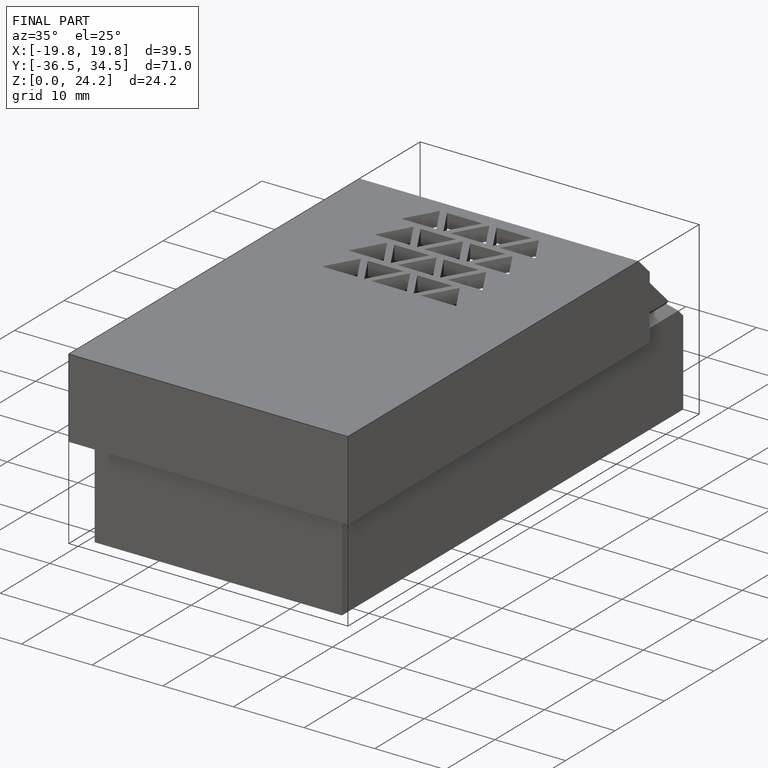
[diagram: finished part — iso view with bounding-box wireframe]
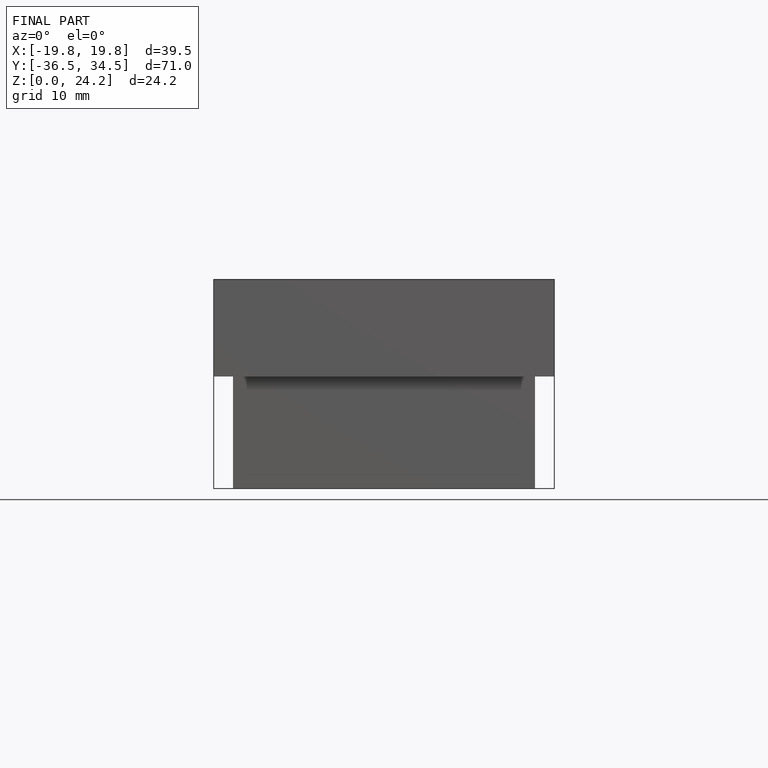
[diagram: finished part — front view with bounding-box wireframe]
